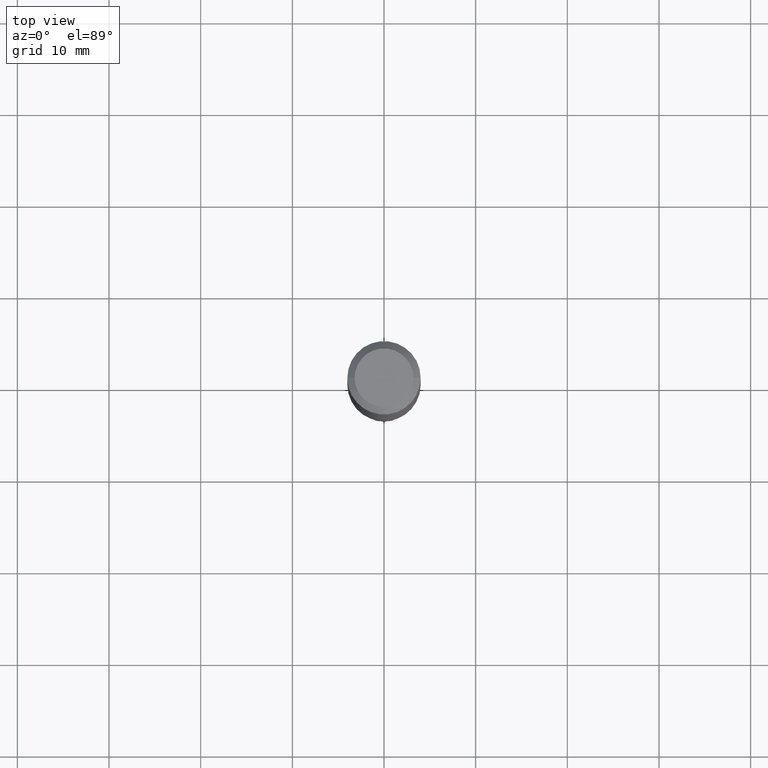
[diagram: clean part render]
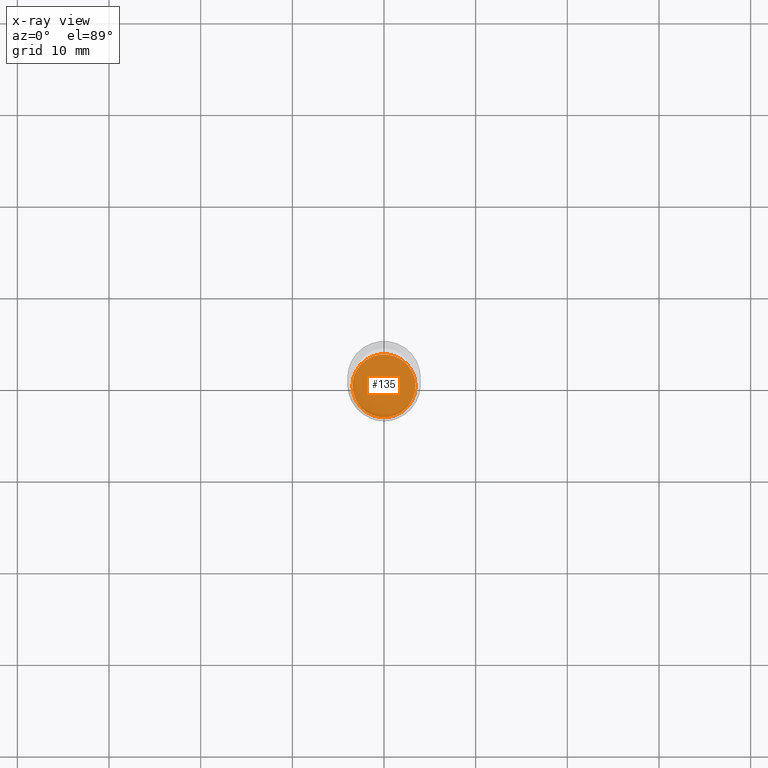
[diagram: x-ray — body ghosted, one internal face saturated and labeled with its STEP entity id]
A machine part, top view, then the same camera in x-ray: the body is ghosted and one INTERNAL B-rep face — a face not visible from any outside direction — is saturated and labeled: STEP entity #135.
In plain terms, the highlighted planar face has unit normal (-0, 0, 1).
Its self-contained STEP definition (entity closure, byte-faithful):
#20 = AXIS2_PLACEMENT_3D ( 'NONE', #413, #75, #234 ) ;
#25 = DIRECTION ( 'NONE',  ( -2.438088387897960049E-29, 3.491481338843145188E-15, 1.000000000000000000 ) ) ;
#37 = VERTEX_POINT ( 'NONE', #206 ) ;
#50 = CIRCLE ( 'NONE', #90, 0.1353499999999999981 ) ;
#55 = DIRECTION ( 'NONE',  ( 1.000000000000000000, -6.982962677686265133E-15, 0.000000000000000000 ) ) ;
#75 = DIRECTION ( 'NONE',  ( -2.445468806185136597E-29, 3.491481338843145583E-15, 1.000000000000000000 ) ) ;
#78 = ORIENTED_EDGE ( 'NONE', *, *, #338, .F. ) ;
#90 = AXIS2_PLACEMENT_3D ( 'NONE', #321, #249, #55 ) ;
#105 = EDGE_CURVE ( 'NONE', #37, #312, #50, .T. ) ;
#135 = ADVANCED_FACE ( 'NONE', ( #144 ), #369, .F. ) ;
#139 = DIRECTION ( 'NONE',  ( 1.000000000000000000, -6.982962677686265922E-15, 4.876176775795935793E-29 ) ) ;
#144 = FACE_OUTER_BOUND ( 'NONE', #360, .T. ) ;
#206 = CARTESIAN_POINT ( 'NONE',  ( 0.1353499999999999981, -8.079287818083035638E-15, -2.043299999999999894 ) ) ;
#211 = AXIS2_PLACEMENT_3D ( 'NONE', #405, #25, #139 ) ;
#234 = DIRECTION ( 'NONE',  ( 1.000000000000000000, -6.982962677686265133E-15, 0.000000000000000000 ) ) ;
#237 = ORIENTED_EDGE ( 'NONE', *, *, #105, .F. ) ;
#249 = DIRECTION ( 'NONE',  ( -2.445468806185136597E-29, 3.491481338843145583E-15, 1.000000000000000000 ) ) ;
#268 = CARTESIAN_POINT ( 'NONE',  ( -0.1353499999999999981, -6.169774999632793093E-15, -2.043299999999999894 ) ) ;
#312 = VERTEX_POINT ( 'NONE', #268 ) ;
#321 = CARTESIAN_POINT ( 'NONE',  ( 4.996826411678089735E-29, -7.134143819658199685E-15, -2.043299999999999894 ) ) ;
#338 = EDGE_CURVE ( 'NONE', #312, #37, #381, .T. ) ;
#360 = EDGE_LOOP ( 'NONE', ( #237, #78 ) ) ;
#369 = PLANE ( 'NONE',  #211 ) ;
#381 = CIRCLE ( 'NONE', #20, 0.1353499999999999981 ) ;
#405 = CARTESIAN_POINT ( 'NONE',  ( 4.996826411678089735E-29, -7.134143819658199685E-15, -2.043299999999999894 ) ) ;
#413 = CARTESIAN_POINT ( 'NONE',  ( 4.996826411678089735E-29, -7.134143819658199685E-15, -2.043299999999999894 ) ) ;